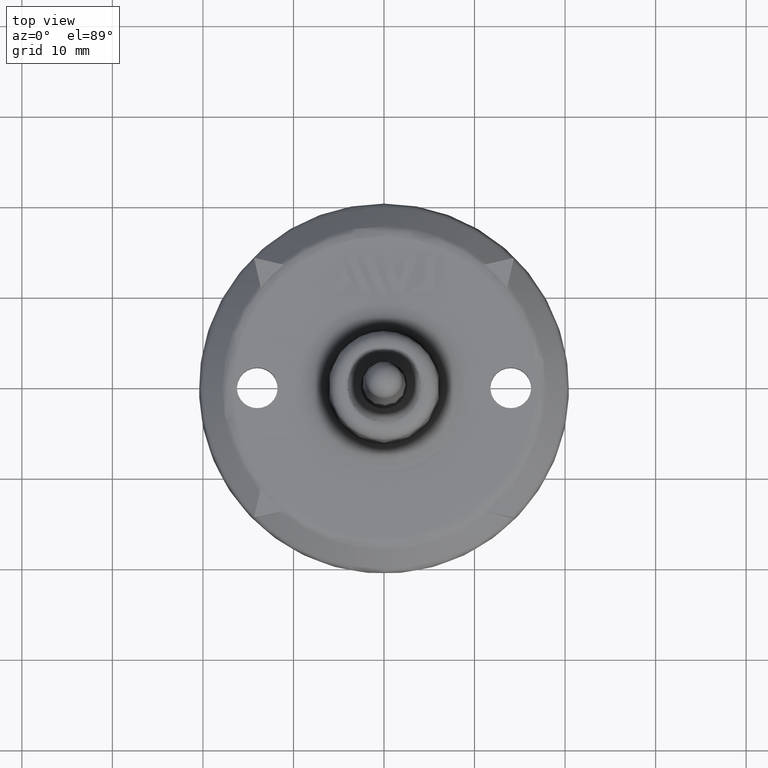
[diagram: clean part render]
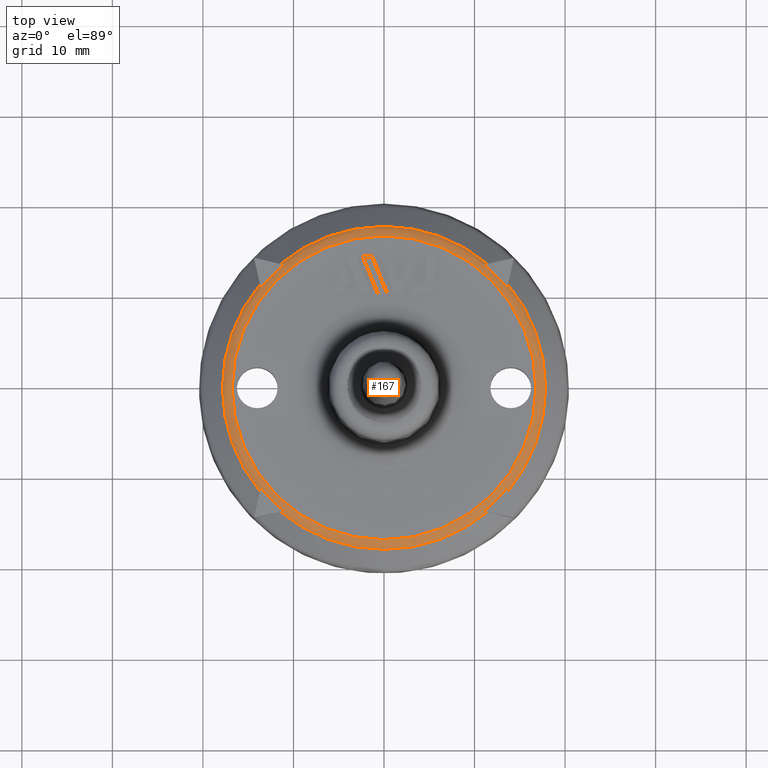
[diagram: same view with one face highlighted and labeled with its STEP entity id]
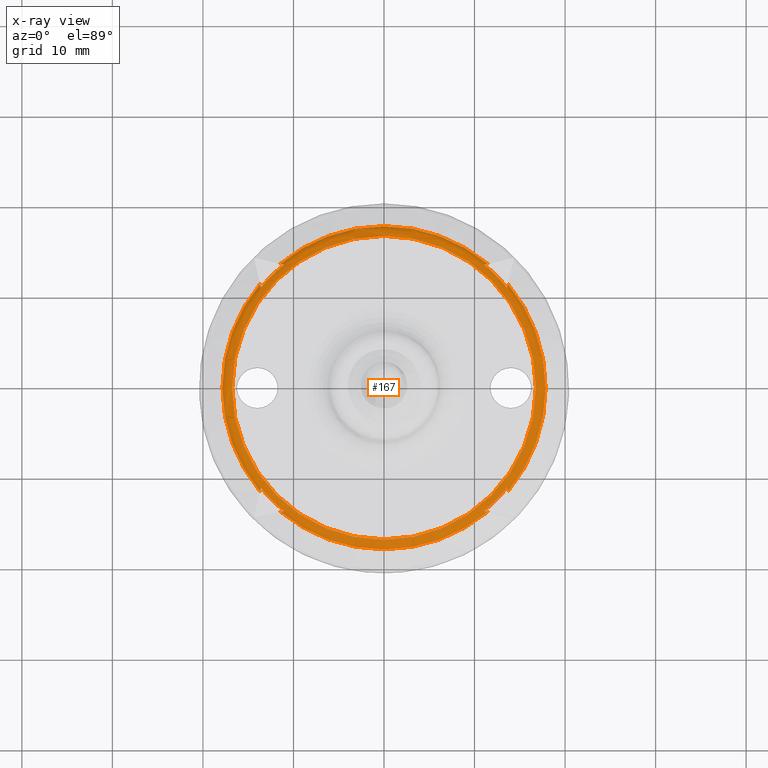
[diagram: x-ray of the same camera — body ghosted, the highlighted face saturated]
A machine part, top view. The second image highlights one B-rep face of the part: STEP entity #167.
The next image is the same camera in x-ray: the body ghosted, the highlighted face saturated — about 0% of this face is hidden behind the body in this view.
In plain terms, the highlighted toroidal blend (fillet) surface has major radius 16.7792 mm and minor (blend) radius 1.5029 mm.
Its self-contained STEP definition (entity closure, byte-faithful):
#167 = ADVANCED_FACE( '', ( #339, #340 ), #341, .T. );
#339 = FACE_OUTER_BOUND( '', #615, .T. );
#340 = FACE_OUTER_BOUND( '', #616, .T. );
#341 = TOROIDAL_SURFACE( '', #617, 16.7792036051656, 1.50291900000000 );
#615 = EDGE_LOOP( '', ( #1131 ) );
#616 = EDGE_LOOP( '', ( #1132, #1133, #1134, #1135, #1136, #1137, #1138, #1139, #1140, #1141, #1142, #1143, #1144, #1145, #1146, #1147 ) );
#617 = AXIS2_PLACEMENT_3D( '', #1148, #1149, #1150 );
#1131 = ORIENTED_EDGE( '', *, *, #1692, .F. );
#1132 = ORIENTED_EDGE( '', *, *, #1832, .F. );
#1133 = ORIENTED_EDGE( '', *, *, #1833, .F. );
#1134 = ORIENTED_EDGE( '', *, *, #1834, .F. );
#1135 = ORIENTED_EDGE( '', *, *, #1835, .F. );
#1136 = ORIENTED_EDGE( '', *, *, #1836, .F. );
#1137 = ORIENTED_EDGE( '', *, *, #1821, .F. );
#1138 = ORIENTED_EDGE( '', *, *, #1837, .F. );
#1139 = ORIENTED_EDGE( '', *, *, #1838, .F. );
#1140 = ORIENTED_EDGE( '', *, *, #1839, .F. );
#1141 = ORIENTED_EDGE( '', *, *, #1840, .F. );
#1142 = ORIENTED_EDGE( '', *, *, #1829, .F. );
#1143 = ORIENTED_EDGE( '', *, *, #1841, .F. );
#1144 = ORIENTED_EDGE( '', *, *, #1826, .F. );
#1145 = ORIENTED_EDGE( '', *, *, #1842, .F. );
#1146 = ORIENTED_EDGE( '', *, *, #1843, .F. );
#1147 = ORIENTED_EDGE( '', *, *, #1844, .F. );
#1148 = CARTESIAN_POINT( '', ( -3.93322166121250E-032, 6.42365058606089E-016, 3.49698799999999 ) );
#1149 = DIRECTION( '', ( 1.12474554136660E-032, -1.83690953073357E-016, -1.00000000000000 ) );
#1150 = DIRECTION( '', ( -6.12303176911189E-017, 1.00000000000000, -1.83690953073357E-016 ) );
#1692 = EDGE_CURVE( '', #1971, #1971, #1972, .F. );
#1821 = EDGE_CURVE( '', #2193, #2195, #2196, .F. );
#1826 = EDGE_CURVE( '', #2202, #2204, #2205, .T. );
#1829 = EDGE_CURVE( '', #2207, #2209, #2210, .T. );
#1832 = EDGE_CURVE( '', #2214, #2215, #2216, .T. );
#1833 = EDGE_CURVE( '', #2217, #2214, #2218, .F. );
#1834 = EDGE_CURVE( '', #2219, #2217, #2220, .T. );
#1835 = EDGE_CURVE( '', #2221, #2219, #2222, .T. );
#1836 = EDGE_CURVE( '', #2195, #2221, #2223, .T. );
#1837 = EDGE_CURVE( '', #2224, #2193, #2225, .T. );
#1838 = EDGE_CURVE( '', #2226, #2224, #2227, .T. );
#1839 = EDGE_CURVE( '', #2228, #2226, #2229, .T. );
#1840 = EDGE_CURVE( '', #2209, #2228, #2230, .F. );
#1841 = EDGE_CURVE( '', #2204, #2207, #2231, .T. );
#1842 = EDGE_CURVE( '', #2232, #2202, #2233, .F. );
#1843 = EDGE_CURVE( '', #2234, #2232, #2235, .T. );
#1844 = EDGE_CURVE( '', #2215, #2234, #2236, .T. );
#1971 = VERTEX_POINT( '', #2431 );
#1972 = CIRCLE( '', #2432, 16.7792036051656 );
#2193 = VERTEX_POINT( '', #2816 );
#2195 = VERTEX_POINT( '', #2821 );
#2196 = CIRCLE( '', #2822, 17.8415794446095 );
#2202 = VERTEX_POINT( '', #2834 );
#2204 = VERTEX_POINT( '', #2839 );
#2205 = B_SPLINE_CURVE_WITH_KNOTS( '', 3, ( #2840, #2841, #2842, #2843 ), .UNSPECIFIED., .F., .F., ( 4, 4 ), ( 0.000000000000000, 0.000461087044999416 ), .UNSPECIFIED. );
#2207 = VERTEX_POINT( '', #2846 );
#2209 = VERTEX_POINT( '', #2849 );
#2210 = B_SPLINE_CURVE_WITH_KNOTS( '', 3, ( #2850, #2851, #2852, #2853 ), .UNSPECIFIED., .F., .F., ( 4, 4 ), ( 0.000000000000000, 0.000461087055120101 ), .UNSPECIFIED. );
#2214 = VERTEX_POINT( '', #2863 );
#2215 = VERTEX_POINT( '', #2864 );
#2216 = B_SPLINE_CURVE_WITH_KNOTS( '', 3, ( #2865, #2866, #2867, #2868 ), .UNSPECIFIED., .F., .F., ( 4, 4 ), ( 0.000000000000000, 0.000461087031759523 ), .UNSPECIFIED. );
#2217 = VERTEX_POINT( '', #2869 );
#2218 = CIRCLE( '', #2870, 17.8415794446095 );
#2219 = VERTEX_POINT( '', #2871 );
#2220 = B_SPLINE_CURVE_WITH_KNOTS( '', 3, ( #2872, #2873, #2874, #2875 ), .UNSPECIFIED., .F., .F., ( 4, 4 ), ( 0.000000000000000, 0.000461086959000810 ), .UNSPECIFIED. );
#2221 = VERTEX_POINT( '', #2876 );
#2222 = CIRCLE( '', #2877, 17.5289913355756 );
#2223 = B_SPLINE_CURVE_WITH_KNOTS( '', 3, ( #2878, #2879, #2880, #2881 ), .UNSPECIFIED., .F., .F., ( 4, 4 ), ( 0.000000000000000, 0.000461086982641299 ), .UNSPECIFIED. );
#2224 = VERTEX_POINT( '', #2882 );
#2225 = B_SPLINE_CURVE_WITH_KNOTS( '', 3, ( #2883, #2884, #2885, #2886 ), .UNSPECIFIED., .F., .F., ( 4, 4 ), ( 0.000000000000000, 0.000461086959000808 ), .UNSPECIFIED. );
#2226 = VERTEX_POINT( '', #2887 );
#2227 = CIRCLE( '', #2888, 17.5289913355756 );
#2228 = VERTEX_POINT( '', #2889 );
#2229 = B_SPLINE_CURVE_WITH_KNOTS( '', 3, ( #2890, #2891, #2892, #2893 ), .UNSPECIFIED., .F., .F., ( 4, 4 ), ( 0.000000000000000, 0.000461087055120099 ), .UNSPECIFIED. );
#2230 = CIRCLE( '', #2894, 17.8415794446095 );
#2231 = CIRCLE( '', #2895, 17.5289913355756 );
#2232 = VERTEX_POINT( '', #2896 );
#2233 = CIRCLE( '', #2897, 17.8415794446095 );
#2234 = VERTEX_POINT( '', #2898 );
#2235 = B_SPLINE_CURVE_WITH_KNOTS( '', 3, ( #2899, #2900, #2901, #2902 ), .UNSPECIFIED., .F., .F., ( 4, 4 ), ( 0.000000000000000, 0.000461087077301471 ), .UNSPECIFIED. );
#2236 = CIRCLE( '', #2903, 17.5289913355756 );
#2431 = CARTESIAN_POINT( '', ( -1.02739596734826E-015, 16.7792036051656, 4.99990699999998 ) );
#2432 = AXIS2_PLACEMENT_3D( '', #3197, #3198, #3199 );
#2816 = CARTESIAN_POINT( '', ( -13.6898716455001, -11.4415633288482, 4.56006047933854 ) );
#2821 = CARTESIAN_POINT( '', ( -13.6898716497305, 11.4415633237865, 4.56006047933853 ) );
#2822 = AXIS2_PLACEMENT_3D( '', #3366, #3367, #3368 );
#2834 = CARTESIAN_POINT( '', ( 13.6898715559076, -11.4415634360459, 4.56006047933853 ) );
#2839 = CARTESIAN_POINT( '', ( 13.6012696779304, -11.0576218234707, 4.79951780000000 ) );
#2840 = CARTESIAN_POINT( '', ( 13.6898715559076, -11.4415634360459, 4.56006047933854 ) );
#2841 = CARTESIAN_POINT( '', ( 13.6626250345439, -11.3234951333387, 4.65661906492836 ) );
#2842 = CARTESIAN_POINT( '', ( 13.6329619470431, -11.1949550401826, 4.73549321139625 ) );
#2843 = CARTESIAN_POINT( '', ( 13.6012696779303, -11.0576218234706, 4.79951779999989 ) );
#2846 = CARTESIAN_POINT( '', ( 11.0576217295459, -13.6012697542898, 4.79951780000000 ) );
#2849 = CARTESIAN_POINT( '', ( 11.4415633565678, -13.6898716223329, 4.56006047933853 ) );
#2850 = CARTESIAN_POINT( '', ( 11.0576217295459, -13.6012697542898, 4.79951780000000 ) );
#2851 = CARTESIAN_POINT( '', ( 11.1949549510102, -13.6329620197534, 4.73549321164471 ) );
#2852 = CARTESIAN_POINT( '', ( 11.3234950490486, -13.6626251039389, 4.65661906531081 ) );
#2853 = CARTESIAN_POINT( '', ( 11.4415633565678, -13.6898716223329, 4.56006047933853 ) );
#2863 = CARTESIAN_POINT( '', ( 11.4415634122110, 13.6898715758281, 4.56006047933853 ) );
#2864 = CARTESIAN_POINT( '', ( 11.0576218193622, 13.6012696812705, 4.79951780000000 ) );
#2865 = CARTESIAN_POINT( '', ( 11.4415634122110, 13.6898715758281, 4.56006047933853 ) );
#2866 = CARTESIAN_POINT( '', ( 11.3234951160532, 13.6626250494772, 4.65661906442802 ) );
#2867 = CARTESIAN_POINT( '', ( 11.1949550295612, 13.6329619564393, 4.73549321107135 ) );
#2868 = CARTESIAN_POINT( '', ( 11.0576218193621, 13.6012696812705, 4.79951779999989 ) );
#2869 = CARTESIAN_POINT( '', ( -11.4415633288482, 13.6898716455001, 4.56006047933853 ) );
#2870 = AXIS2_PLACEMENT_3D( '', #3374, #3375, #3376 );
#2871 = CARTESIAN_POINT( '', ( -11.0576218440961, 13.6012696611623, 4.79951780000000 ) );
#2872 = CARTESIAN_POINT( '', ( -11.0576218440961, 13.6012696611623, 4.79951780000000 ) );
#2873 = CARTESIAN_POINT( '', ( -11.1949550186142, 13.6329619691336, 4.73549320928601 ) );
#2874 = CARTESIAN_POINT( '', ( -11.3234950685874, 13.6626250921531, 4.65661906167849 ) );
#2875 = CARTESIAN_POINT( '', ( -11.4415633288482, 13.6898716455001, 4.56006047933853 ) );
#2876 = CARTESIAN_POINT( '', ( -13.6012696936621, 11.0576218041201, 4.79951780000000 ) );
#2877 = AXIS2_PLACEMENT_3D( '', #3377, #3378, #3379 );
#2878 = CARTESIAN_POINT( '', ( -13.6898716497305, 11.4415633237865, 4.56006047933853 ) );
#2879 = CARTESIAN_POINT( '', ( -13.6626251048777, 11.3234950519262, 4.65661906257186 ) );
#2880 = CARTESIAN_POINT( '', ( -13.6329619912978, 11.1949549901571, 4.73549320986603 ) );
#2881 = CARTESIAN_POINT( '', ( -13.6012696936621, 11.0576218041201, 4.79951779999989 ) );
#2882 = CARTESIAN_POINT( '', ( -13.6012696611623, -11.0576218440961, 4.79951780000000 ) );
#2883 = CARTESIAN_POINT( '', ( -13.6012696611623, -11.0576218440961, 4.79951780000000 ) );
#2884 = CARTESIAN_POINT( '', ( -13.6329619691336, -11.1949550186142, 4.73549320928602 ) );
#2885 = CARTESIAN_POINT( '', ( -13.6626250921531, -11.3234950685874, 4.65661906167849 ) );
#2886 = CARTESIAN_POINT( '', ( -13.6898716455001, -11.4415633288482, 4.56006047933853 ) );
#2887 = CARTESIAN_POINT( '', ( -11.0576217295459, -13.6012697542898, 4.79951780000000 ) );
#2888 = AXIS2_PLACEMENT_3D( '', #3380, #3381, #3382 );
#2889 = CARTESIAN_POINT( '', ( -11.4415633565678, -13.6898716223329, 4.56006047933853 ) );
#2890 = CARTESIAN_POINT( '', ( -11.4415633565678, -13.6898716223329, 4.56006047933854 ) );
#2891 = CARTESIAN_POINT( '', ( -11.3234950490486, -13.6626251039389, 4.65661906531081 ) );
#2892 = CARTESIAN_POINT( '', ( -11.1949549510101, -13.6329620197534, 4.73549321164461 ) );
#2893 = CARTESIAN_POINT( '', ( -11.0576217295458, -13.6012697542898, 4.79951779999989 ) );
#2894 = AXIS2_PLACEMENT_3D( '', #3383, #3384, #3385 );
#2895 = AXIS2_PLACEMENT_3D( '', #3386, #3387, #3388 );
#2896 = CARTESIAN_POINT( '', ( 13.6898716169867, 11.4415633629646, 4.56006047933853 ) );
#2897 = AXIS2_PLACEMENT_3D( '', #3389, #3390, #3391 );
#2898 = CARTESIAN_POINT( '', ( 13.6012697757808, 11.0576217031112, 4.79951780000000 ) );
#2899 = CARTESIAN_POINT( '', ( 13.6012697757808, 11.0576217031112, 4.79951780000000 ) );
#2900 = CARTESIAN_POINT( '', ( 13.6329620314349, 11.1949549354093, 4.73549321218902 ) );
#2901 = CARTESIAN_POINT( '', ( 13.6626251066587, 11.3234950445397, 4.65661906614903 ) );
#2902 = CARTESIAN_POINT( '', ( 13.6898716169867, 11.4415633629646, 4.56006047933853 ) );
#2903 = AXIS2_PLACEMENT_3D( '', #3392, #3393, #3394 );
#3197 = CARTESIAN_POINT( '', ( -5.62362310549765E-032, 9.18437682108145E-016, 4.99990699999999 ) );
#3198 = DIRECTION( '', ( 1.12474554136660E-032, -1.83690953073357E-016, -1.00000000000000 ) );
#3199 = DIRECTION( '', ( -6.12303176911189E-017, 1.00000000000000, -1.83690953073357E-016 ) );
#3366 = CARTESIAN_POINT( '', ( -5.12890769249807E-032, 8.37641855521842E-016, 4.56006047933853 ) );
#3367 = DIRECTION( '', ( -1.12474554136660E-032, 1.83690953073357E-016, 1.00000000000000 ) );
#3368 = DIRECTION( '', ( 6.12303176911189E-017, -1.00000000000000, 1.83690953073357E-016 ) );
#3374 = CARTESIAN_POINT( '', ( -5.12890769249807E-032, 8.37641855521842E-016, 4.56006047933853 ) );
#3375 = DIRECTION( '', ( -1.12474554136660E-032, 1.83690953073357E-016, 1.00000000000000 ) );
#3376 = DIRECTION( '', ( 6.12303176911189E-017, -1.00000000000000, 1.83690953073357E-016 ) );
#3377 = CARTESIAN_POINT( '', ( -5.39823624625965E-032, 8.81627998974540E-016, 4.79951780000000 ) );
#3378 = DIRECTION( '', ( 1.12474554136660E-032, -1.83690953073357E-016, -1.00000000000000 ) );
#3379 = DIRECTION( '', ( -6.12303176911189E-017, 1.00000000000000, -1.83690953073357E-016 ) );
#3380 = CARTESIAN_POINT( '', ( -5.39823624625965E-032, 8.81627998974540E-016, 4.79951780000000 ) );
#3381 = DIRECTION( '', ( 1.12474554136660E-032, -1.83690953073357E-016, -1.00000000000000 ) );
#3382 = DIRECTION( '', ( -6.12303176911189E-017, 1.00000000000000, -1.83690953073357E-016 ) );
#3383 = CARTESIAN_POINT( '', ( -5.12890769249807E-032, 8.37641855521842E-016, 4.56006047933853 ) );
#3384 = DIRECTION( '', ( -1.12474554136660E-032, 1.83690953073357E-016, 1.00000000000000 ) );
#3385 = DIRECTION( '', ( 6.12303176911189E-017, -1.00000000000000, 1.83690953073357E-016 ) );
#3386 = CARTESIAN_POINT( '', ( -5.39823624625965E-032, 8.81627998974540E-016, 4.79951780000000 ) );
#3387 = DIRECTION( '', ( 1.12474554136660E-032, -1.83690953073357E-016, -1.00000000000000 ) );
#3388 = DIRECTION( '', ( -6.12303176911189E-017, 1.00000000000000, -1.83690953073357E-016 ) );
#3389 = CARTESIAN_POINT( '', ( -5.12890769249807E-032, 8.37641855521842E-016, 4.56006047933853 ) );
#3390 = DIRECTION( '', ( -1.12474554136660E-032, 1.83690953073357E-016, 1.00000000000000 ) );
#3391 = DIRECTION( '', ( 6.12303176911189E-017, -1.00000000000000, 1.83690953073357E-016 ) );
#3392 = CARTESIAN_POINT( '', ( -5.39823624625965E-032, 8.81627998974540E-016, 4.79951780000000 ) );
#3393 = DIRECTION( '', ( 1.12474554136660E-032, -1.83690953073357E-016, -1.00000000000000 ) );
#3394 = DIRECTION( '', ( -6.12303176911189E-017, 1.00000000000000, -1.83690953073357E-016 ) );